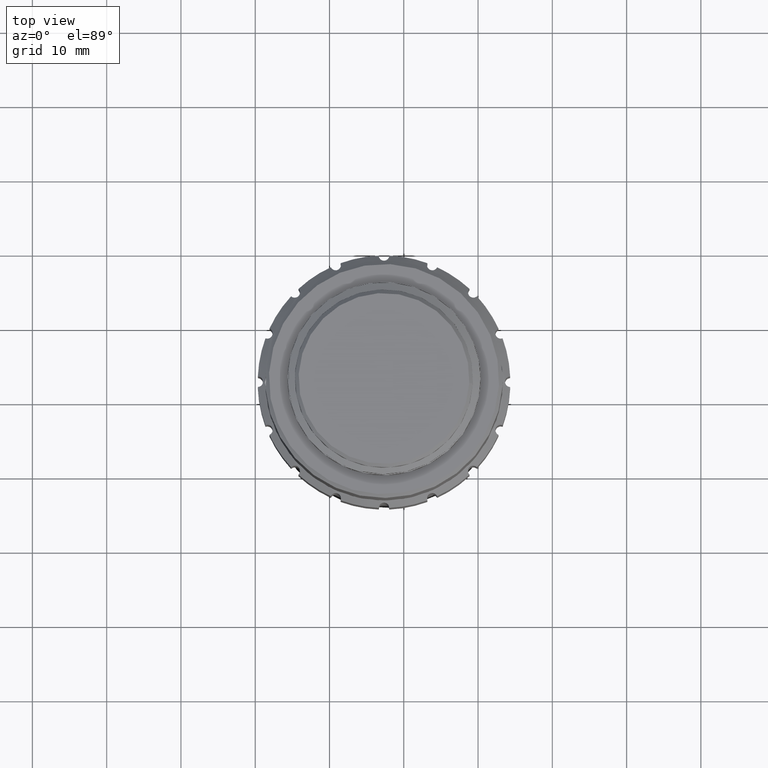
[diagram: clean part render]
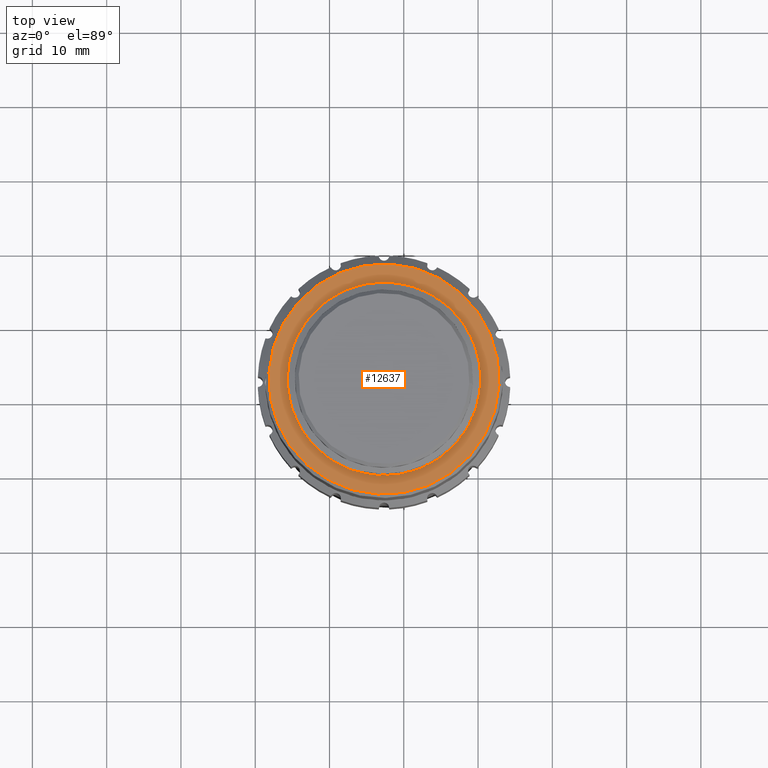
[diagram: same view with one face highlighted and labeled with its STEP entity id]
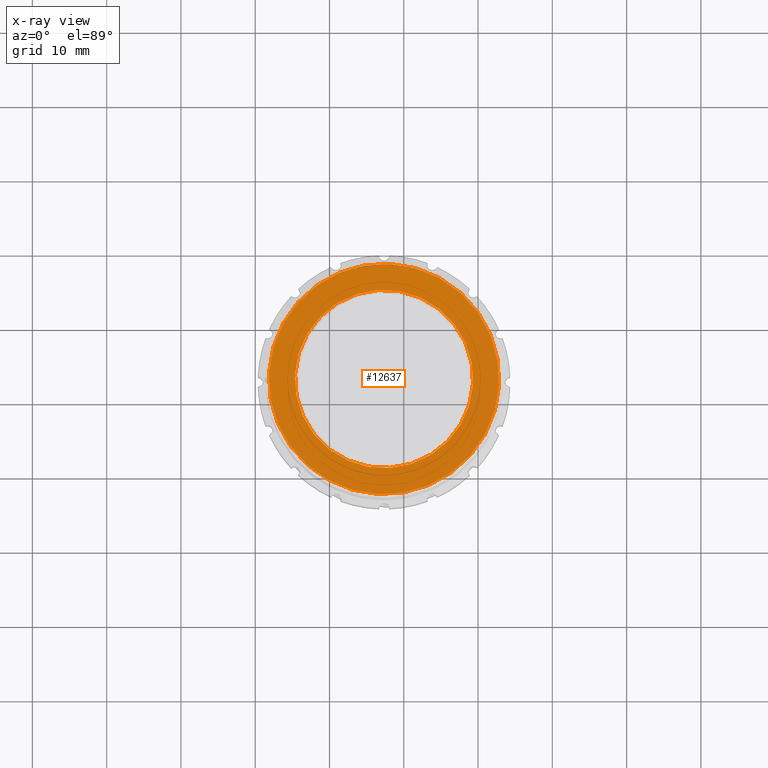
[diagram: x-ray of the same camera — body ghosted, the highlighted face saturated]
A machine part, top view. The second image highlights one B-rep face of the part: STEP entity #12637.
The next image is the same camera in x-ray: the body ghosted, the highlighted face saturated — about 0% of this face is hidden behind the body in this view.
In plain terms, the highlighted planar face has unit normal (0, 0, 1).
Its self-contained STEP definition (entity closure, byte-faithful):
#623 = DIRECTION ( 'NONE',  ( 0.000000000000000000, 0.000000000000000000, 1.000000000000000000 ) ) ;
#868 = DIRECTION ( 'NONE',  ( 0.000000000000000000, 0.000000000000000000, 1.000000000000000000 ) ) ;
#1680 = EDGE_LOOP ( 'NONE', ( #23582 ) ) ;
#4515 = CIRCLE ( 'NONE', #12584, 15.50000000000000355 ) ;
#4746 = EDGE_LOOP ( 'NONE', ( #23254 ) ) ;
#5677 = CARTESIAN_POINT ( 'NONE',  ( -122.6630341068842824, 22.01530283243863906, 27.09225607790693857 ) ) ;
#7840 = EDGE_CURVE ( 'NONE', #12200, #12200, #27803, .T. ) ;
#8517 = DIRECTION ( 'NONE',  ( 0.000000000000000000, 0.000000000000000000, 1.000000000000000000 ) ) ;
#12200 = VERTEX_POINT ( 'NONE', #26565 ) ;
#12584 = AXIS2_PLACEMENT_3D ( 'NONE', #14845, #623, #19567 ) ;
#12637 = ADVANCED_FACE ( 'NONE', ( #22878, #29999 ), #30157, .T. ) ;
#13106 = DIRECTION ( 'NONE',  ( 0.9984986589527603540, -0.05477616333350730782, 0.000000000000000000 ) ) ;
#13437 = EDGE_CURVE ( 'NONE', #26874, #26874, #4515, .T. ) ;
#14845 = CARTESIAN_POINT ( 'NONE',  ( -122.6630341068842824, 22.01530283243863906, 27.09225607790693857 ) ) ;
#17237 = CARTESIAN_POINT ( 'NONE',  ( -107.1863048931164997, 21.16627230076927901, 27.09225607790693857 ) ) ;
#19567 = DIRECTION ( 'NONE',  ( 0.9984986589527603540, -0.05477616333350721067, 0.000000000000000000 ) ) ;
#19975 = CARTESIAN_POINT ( 'NONE',  ( -122.6630341068842824, 22.01530283243863906, 27.09225607790693857 ) ) ;
#22878 = FACE_OUTER_BOUND ( 'NONE', #4746, .T. ) ;
#23254 = ORIENTED_EDGE ( 'NONE', *, *, #13437, .T. ) ;
#23582 = ORIENTED_EDGE ( 'NONE', *, *, #7840, .F. ) ;
#25028 = DIRECTION ( 'NONE',  ( 0.9984986589527604650, -0.05477616333350729394, 0.000000000000000000 ) ) ;
#26197 = AXIS2_PLACEMENT_3D ( 'NONE', #5677, #8517, #13106 ) ;
#26565 = CARTESIAN_POINT ( 'NONE',  ( -110.6810501994511498, 21.35798887243655031, 27.09225607790693857 ) ) ;
#26874 = VERTEX_POINT ( 'NONE', #17237 ) ;
#27803 = CIRCLE ( 'NONE', #30835, 12.00000000000000533 ) ;
#29999 = FACE_BOUND ( 'NONE', #1680, .T. ) ;
#30157 = PLANE ( 'NONE',  #26197 ) ;
#30835 = AXIS2_PLACEMENT_3D ( 'NONE', #19975, #868, #25028 ) ;